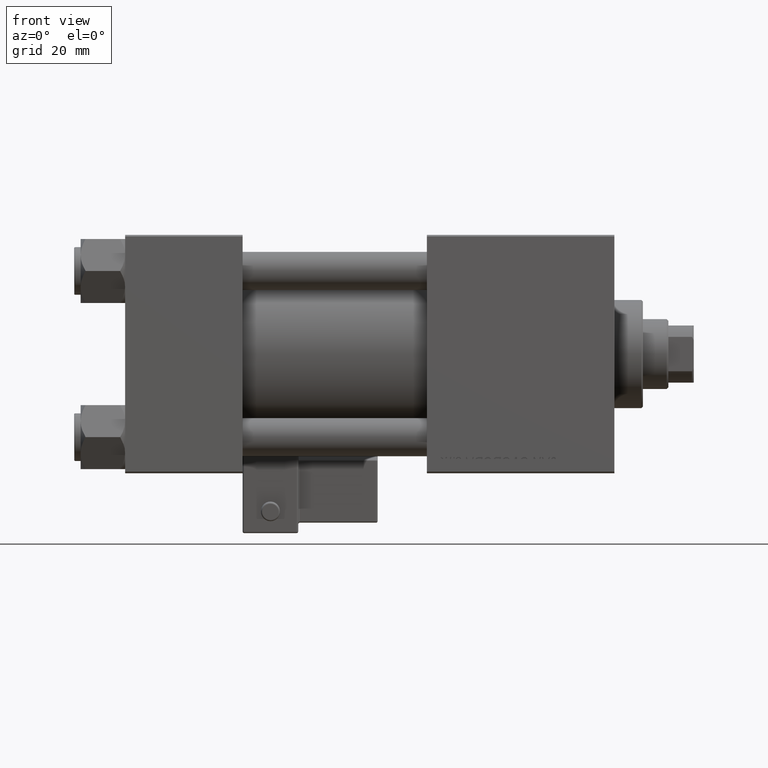
[diagram: clean part render]
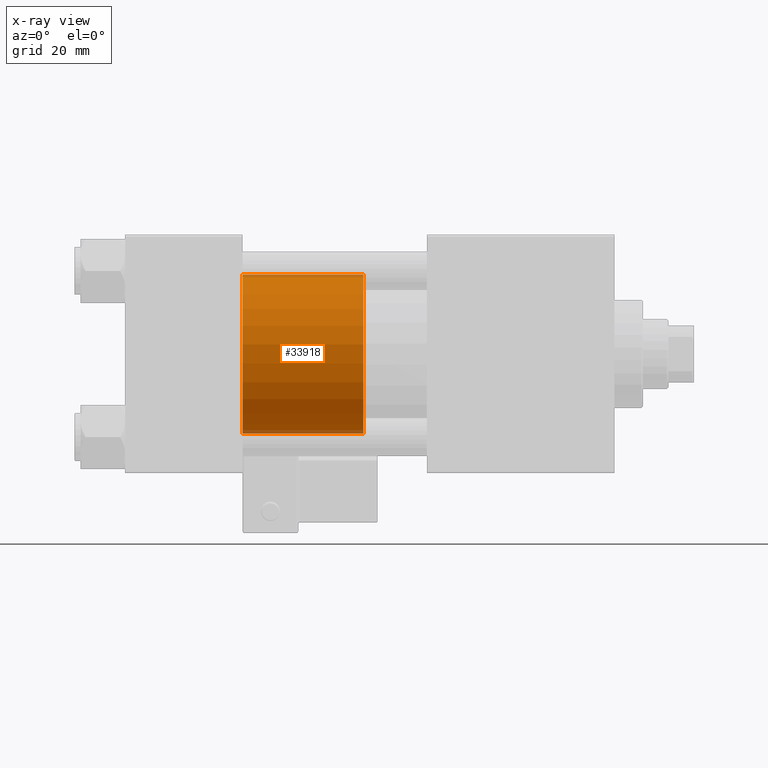
[diagram: x-ray — body ghosted, one internal face saturated and labeled with its STEP entity id]
A machine part, front view, then the same camera in x-ray: the body is ghosted and one INTERNAL B-rep face — a face not visible from any outside direction — is saturated and labeled: STEP entity #33918.
In plain terms, the highlighted cylindrical surface (partial cylindrical patch) has radius 25 mm, axis along (-1, 0, 0).
Its self-contained STEP definition (entity closure, byte-faithful):
#483 = VECTOR ( 'NONE', #32847, 1000.000000000000000 ) ;
#1941 = AXIS2_PLACEMENT_3D ( 'NONE', #50275, #34908, #10801 ) ;
#2126 = DIRECTION ( 'NONE',  ( -0.000000000000000000, -0.000000000000000000, -1.000000000000000000 ) ) ;
#2560 = CARTESIAN_POINT ( 'NONE',  ( 25.00000000000000000, 3.061616997868383043E-15, 38.00000000000000000 ) ) ;
#2593 = CYLINDRICAL_SURFACE ( 'NONE', #1941, 25.00000000000000000 ) ;
#2775 = EDGE_CURVE ( 'NONE', #20203, #39395, #41837, .T. ) ;
#3645 = ORIENTED_EDGE ( 'NONE', *, *, #21048, .F. ) ;
#4231 = CARTESIAN_POINT ( 'NONE',  ( -25.00000000000000000, 0.000000000000000000, 0.000000000000000000 ) ) ;
#6627 = CARTESIAN_POINT ( 'NONE',  ( 25.00000000000000000, 3.061616997868383043E-15, 0.000000000000000000 ) ) ;
#8565 = EDGE_CURVE ( 'NONE', #34163, #47725, #20935, .T. ) ;
#8655 = CARTESIAN_POINT ( 'NONE',  ( -25.00000000000000000, 0.000000000000000000, 38.00000000000000000 ) ) ;
#8877 = EDGE_LOOP ( 'NONE', ( #3645, #38968, #35063, #30415 ) ) ;
#9547 = VECTOR ( 'NONE', #2126, 1000.000000000000000 ) ;
#9558 = DIRECTION ( 'NONE',  ( 1.000000000000000000, 0.000000000000000000, 0.000000000000000000 ) ) ;
#9802 = CARTESIAN_POINT ( 'NONE',  ( 25.00000000000000000, 3.061616997868383043E-15, 38.00000000000000000 ) ) ;
#10801 = DIRECTION ( 'NONE',  ( -1.000000000000000000, 0.000000000000000000, 0.000000000000000000 ) ) ;
#11932 = CIRCLE ( 'NONE', #48296, 25.00000000000000000 ) ;
#20203 = VERTEX_POINT ( 'NONE', #2560 ) ;
#20935 = LINE ( 'NONE', #32316, #483 ) ;
#21048 = EDGE_CURVE ( 'NONE', #20203, #34163, #28631, .T. ) ;
#22262 = CARTESIAN_POINT ( 'NONE',  ( 0.000000000000000000, 0.000000000000000000, 38.00000000000000000 ) ) ;
#28631 = CIRCLE ( 'NONE', #49769, 25.00000000000000000 ) ;
#28945 = DIRECTION ( 'NONE',  ( 0.000000000000000000, 0.000000000000000000, 1.000000000000000000 ) ) ;
#29667 = CARTESIAN_POINT ( 'NONE',  ( 0.000000000000000000, 0.000000000000000000, 0.000000000000000000 ) ) ;
#30415 = ORIENTED_EDGE ( 'NONE', *, *, #8565, .F. ) ;
#32316 = CARTESIAN_POINT ( 'NONE',  ( -25.00000000000000000, 0.000000000000000000, 38.00000000000000000 ) ) ;
#32847 = DIRECTION ( 'NONE',  ( -0.000000000000000000, -0.000000000000000000, -1.000000000000000000 ) ) ;
#33918 = ADVANCED_FACE ( 'NONE', ( #34120 ), #2593, .T. ) ;
#34120 = FACE_OUTER_BOUND ( 'NONE', #8877, .T. ) ;
#34163 = VERTEX_POINT ( 'NONE', #8655 ) ;
#34908 = DIRECTION ( 'NONE',  ( -0.000000000000000000, -0.000000000000000000, -1.000000000000000000 ) ) ;
#35063 = ORIENTED_EDGE ( 'NONE', *, *, #43947, .T. ) ;
#38968 = ORIENTED_EDGE ( 'NONE', *, *, #2775, .T. ) ;
#39395 = VERTEX_POINT ( 'NONE', #6627 ) ;
#41837 = LINE ( 'NONE', #9802, #9547 ) ;
#43947 = EDGE_CURVE ( 'NONE', #39395, #47725, #11932, .T. ) ;
#45845 = DIRECTION ( 'NONE',  ( 0.000000000000000000, 0.000000000000000000, 1.000000000000000000 ) ) ;
#47725 = VERTEX_POINT ( 'NONE', #4231 ) ;
#48296 = AXIS2_PLACEMENT_3D ( 'NONE', #29667, #45845, #9558 ) ;
#49769 = AXIS2_PLACEMENT_3D ( 'NONE', #22262, #28945, #50850 ) ;
#50275 = CARTESIAN_POINT ( 'NONE',  ( 0.000000000000000000, 0.000000000000000000, 38.00000000000000000 ) ) ;
#50850 = DIRECTION ( 'NONE',  ( 1.000000000000000000, 0.000000000000000000, 0.000000000000000000 ) ) ;